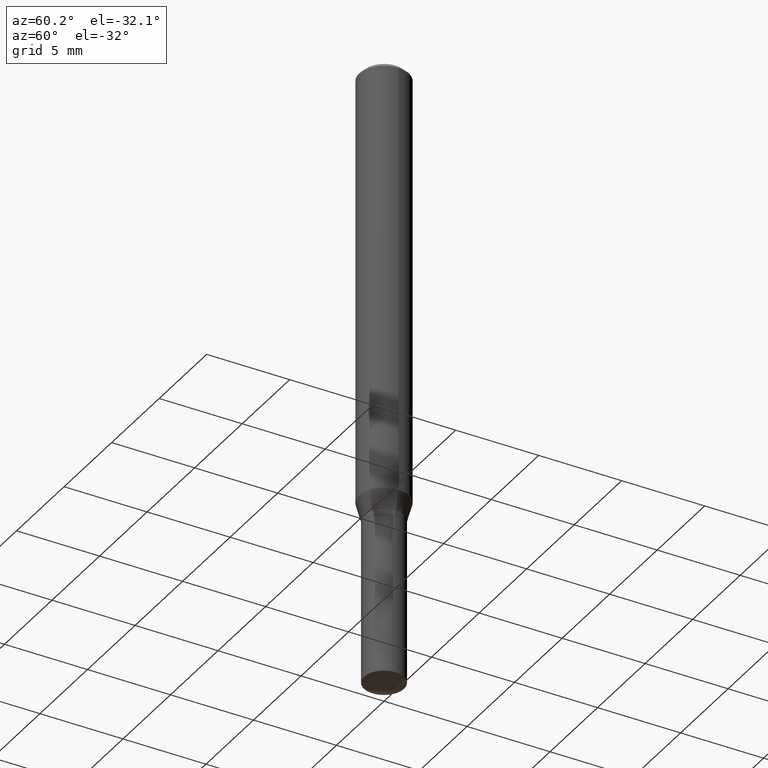
[diagram: clean part render]
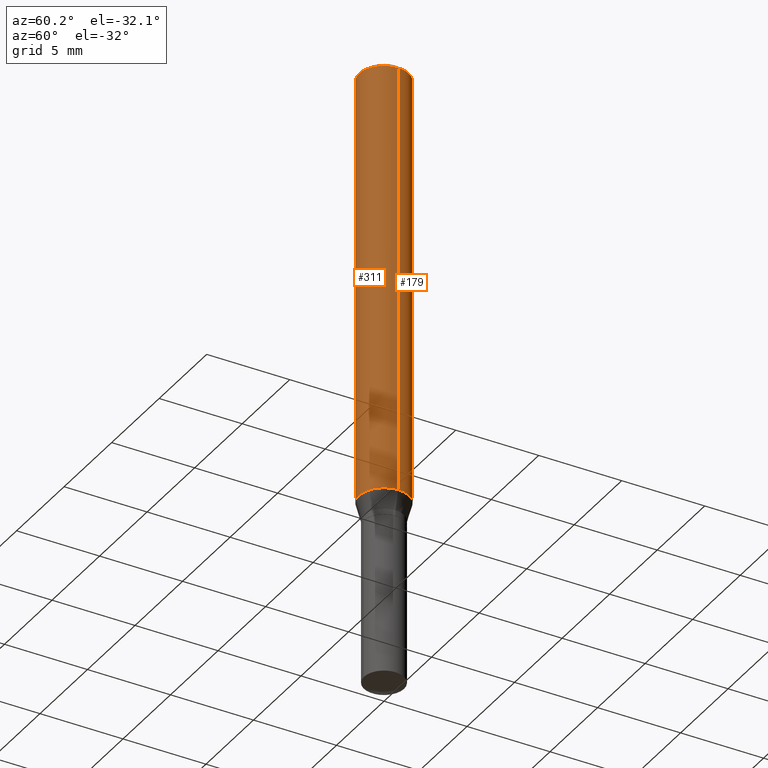
[diagram: same view with one multi-face feature highlighted, each face labeled with its STEP entity id]
A machine part, auxiliary view. The highlighted faces form ONE feature: a constant-radius fillet chain: 2 tangent blend faces with common blend radius 1.4999 mm. The faces share edges in the B-rep.
Their STEP definitions:
[1] entity #311 (Cylinder):
#9 = DIRECTION ( 'NONE',  ( -2.445468806185136597E-29, 3.491481338843145583E-15, 1.000000000000000000 ) ) ;
#78 = CYLINDRICAL_SURFACE ( 'NONE', #352, 0.05905000000000006771 ) ;
#87 = DIRECTION ( 'NONE',  ( 1.000000000000000000, -6.982962677686265133E-15, 0.000000000000000000 ) ) ;
#133 = EDGE_CURVE ( 'NONE', #238, #189, #249, .T. ) ;
#138 = ORIENTED_EDGE ( 'NONE', *, *, #133, .F. ) ;
#140 = CARTESIAN_POINT ( 'NONE',  ( 0.05904999999999999832, -4.535783407291118600E-16, -0.01181000000000006871 ) ) ;
#159 = EDGE_CURVE ( 'NONE', #331, #189, #333, .T. ) ;
#167 = AXIS2_PLACEMENT_3D ( 'NONE', #390, #435, #87 ) ;
#171 = EDGE_CURVE ( 'NONE', #279, #331, #421, .T. ) ;
#177 = EDGE_LOOP ( 'NONE', ( #285, #320, #361, #138 ) ) ;
#189 = VERTEX_POINT ( 'NONE', #140 ) ;
#190 = DIRECTION ( 'NONE',  ( 1.000000000000000000, -6.982962677686266711E-15, 4.876176775795936353E-29 ) ) ;
#191 = DIRECTION ( 'NONE',  ( 1.000000000000000000, -6.982962677686266711E-15, 0.000000000000000000 ) ) ;
#210 = CARTESIAN_POINT ( 'NONE',  ( -0.05904999999999999832, -1.411389119664253704E-15, -0.01181000000000006871 ) ) ;
#227 = DIRECTION ( 'NONE',  ( -2.445468806185136877E-29, 3.491481338843145188E-15, 1.000000000000000000 ) ) ;
#232 = FACE_OUTER_BOUND ( 'NONE', #177, .T. ) ;
#238 = VERTEX_POINT ( 'NONE', #210 ) ;
#249 = CIRCLE ( 'NONE', #476, 0.05904999999999999832 ) ;
#279 = VERTEX_POINT ( 'NONE', #369 ) ;
#283 = EDGE_CURVE ( 'NONE', #279, #238, #329, .T. ) ;
#285 = ORIENTED_EDGE ( 'NONE', *, *, #283, .F. ) ;
#311 = ADVANCED_FACE ( 'NONE', ( #232 ), #78, .T. ) ;
#320 = ORIENTED_EDGE ( 'NONE', *, *, #171, .T. ) ;
#325 = CARTESIAN_POINT ( 'NONE',  ( 0.05905000000000013016, -4.033038761766825162E-15, -1.037008210632200500 ) ) ;
#329 = LINE ( 'NONE', #406, #429 ) ;
#331 = VERTEX_POINT ( 'NONE', #325 ) ;
#333 = LINE ( 'NONE', #428, #367 ) ;
#352 = AXIS2_PLACEMENT_3D ( 'NONE', #383, #9, #190 ) ;
#361 = ORIENTED_EDGE ( 'NONE', *, *, #159, .T. ) ;
#367 = VECTOR ( 'NONE', #474, 39.37007874015748143 ) ;
#369 = CARTESIAN_POINT ( 'NONE',  ( -0.05905000000000013016, -3.201119330183110355E-15, -1.037008210632200500 ) ) ;
#371 = DIRECTION ( 'NONE',  ( -2.445468806185136597E-29, 3.491481338843145583E-15, 1.000000000000000000 ) ) ;
#383 = CARTESIAN_POINT ( 'NONE',  ( 0.000000000000000000, 0.000000000000000000, 0.000000000000000000 ) ) ;
#390 = CARTESIAN_POINT ( 'NONE',  ( 2.535971230858911945E-29, -3.620694815649450242E-15, -1.037008210632200500 ) ) ;
#406 = CARTESIAN_POINT ( 'NONE',  ( -0.05905000000000006771, 4.195754854663396409E-16, -2.904631170795525045E-30 ) ) ;
#421 = CIRCLE ( 'NONE', #167, 0.05905000000000013016 ) ;
#428 = CARTESIAN_POINT ( 'NONE',  ( 0.05905000000000006771, -4.123439461173745257E-16, 2.879382386107503723E-30 ) ) ;
#429 = VECTOR ( 'NONE', #227, 39.37007874015748143 ) ;
#435 = DIRECTION ( 'NONE',  ( -2.445468806185136597E-29, 3.491481338843145583E-15, 1.000000000000000000 ) ) ;
#453 = CARTESIAN_POINT ( 'NONE',  ( 2.888098660104663328E-31, -4.123439461173779030E-17, -0.01181000000000006871 ) ) ;
#474 = DIRECTION ( 'NONE',  ( -2.445468806185136877E-29, 3.491481338843145188E-15, 1.000000000000000000 ) ) ;
#476 = AXIS2_PLACEMENT_3D ( 'NONE', #453, #371, #191 ) ;
[2] entity #179 (Cylinder):
#14 = AXIS2_PLACEMENT_3D ( 'NONE', #15, #471, #126 ) ;
#15 = CARTESIAN_POINT ( 'NONE',  ( 0.000000000000000000, 0.000000000000000000, 0.000000000000000000 ) ) ;
#46 = EDGE_LOOP ( 'NONE', ( #397, #294, #433, #393 ) ) ;
#50 = CYLINDRICAL_SURFACE ( 'NONE', #14, 0.05905000000000006771 ) ;
#126 = DIRECTION ( 'NONE',  ( 1.000000000000000000, -6.982962677686266711E-15, 4.876176775795936353E-29 ) ) ;
#140 = CARTESIAN_POINT ( 'NONE',  ( 0.05904999999999999832, -4.535783407291118600E-16, -0.01181000000000006871 ) ) ;
#152 = DIRECTION ( 'NONE',  ( 1.000000000000000000, -6.982962677686265133E-15, 0.000000000000000000 ) ) ;
#155 = DIRECTION ( 'NONE',  ( -2.445468806185136597E-29, 3.491481338843145583E-15, 1.000000000000000000 ) ) ;
#159 = EDGE_CURVE ( 'NONE', #331, #189, #333, .T. ) ;
#179 = ADVANCED_FACE ( 'NONE', ( #353 ), #50, .T. ) ;
#189 = VERTEX_POINT ( 'NONE', #140 ) ;
#210 = CARTESIAN_POINT ( 'NONE',  ( -0.05904999999999999832, -1.411389119664253704E-15, -0.01181000000000006871 ) ) ;
#220 = CIRCLE ( 'NONE', #346, 0.05904999999999999832 ) ;
#223 = CARTESIAN_POINT ( 'NONE',  ( 2.535971230858911945E-29, -3.620694815649450242E-15, -1.037008210632200500 ) ) ;
#227 = DIRECTION ( 'NONE',  ( -2.445468806185136877E-29, 3.491481338843145188E-15, 1.000000000000000000 ) ) ;
#238 = VERTEX_POINT ( 'NONE', #210 ) ;
#246 = EDGE_CURVE ( 'NONE', #331, #279, #382, .T. ) ;
#279 = VERTEX_POINT ( 'NONE', #369 ) ;
#283 = EDGE_CURVE ( 'NONE', #279, #238, #329, .T. ) ;
#289 = AXIS2_PLACEMENT_3D ( 'NONE', #223, #155, #152 ) ;
#294 = ORIENTED_EDGE ( 'NONE', *, *, #283, .T. ) ;
#325 = CARTESIAN_POINT ( 'NONE',  ( 0.05905000000000013016, -4.033038761766825162E-15, -1.037008210632200500 ) ) ;
#329 = LINE ( 'NONE', #406, #429 ) ;
#331 = VERTEX_POINT ( 'NONE', #325 ) ;
#333 = LINE ( 'NONE', #428, #367 ) ;
#341 = CARTESIAN_POINT ( 'NONE',  ( 2.888098660104663328E-31, -4.123439461173779030E-17, -0.01181000000000006871 ) ) ;
#345 = DIRECTION ( 'NONE',  ( -2.445468806185136597E-29, 3.491481338843145583E-15, 1.000000000000000000 ) ) ;
#346 = AXIS2_PLACEMENT_3D ( 'NONE', #341, #345, #423 ) ;
#353 = FACE_OUTER_BOUND ( 'NONE', #46, .T. ) ;
#367 = VECTOR ( 'NONE', #474, 39.37007874015748143 ) ;
#369 = CARTESIAN_POINT ( 'NONE',  ( -0.05905000000000013016, -3.201119330183110355E-15, -1.037008210632200500 ) ) ;
#372 = EDGE_CURVE ( 'NONE', #189, #238, #220, .T. ) ;
#382 = CIRCLE ( 'NONE', #289, 0.05905000000000013016 ) ;
#393 = ORIENTED_EDGE ( 'NONE', *, *, #159, .F. ) ;
#397 = ORIENTED_EDGE ( 'NONE', *, *, #246, .T. ) ;
#406 = CARTESIAN_POINT ( 'NONE',  ( -0.05905000000000006771, 4.195754854663396409E-16, -2.904631170795525045E-30 ) ) ;
#423 = DIRECTION ( 'NONE',  ( 1.000000000000000000, -6.982962677686266711E-15, 0.000000000000000000 ) ) ;
#428 = CARTESIAN_POINT ( 'NONE',  ( 0.05905000000000006771, -4.123439461173745257E-16, 2.879382386107503723E-30 ) ) ;
#429 = VECTOR ( 'NONE', #227, 39.37007874015748143 ) ;
#433 = ORIENTED_EDGE ( 'NONE', *, *, #372, .F. ) ;
#471 = DIRECTION ( 'NONE',  ( -2.445468806185136597E-29, 3.491481338843145583E-15, 1.000000000000000000 ) ) ;
#474 = DIRECTION ( 'NONE',  ( -2.445468806185136877E-29, 3.491481338843145188E-15, 1.000000000000000000 ) ) ;